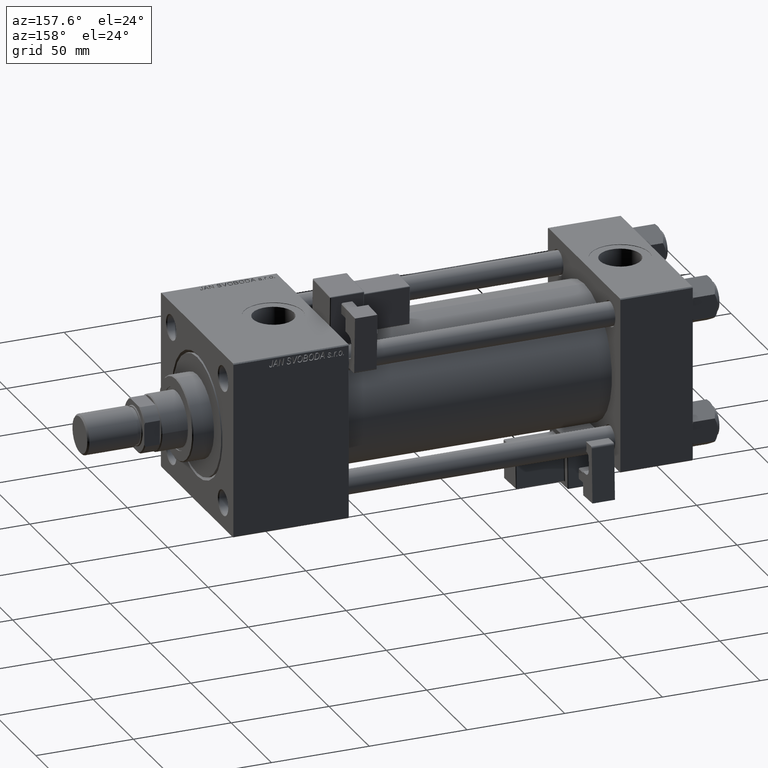
[diagram: clean part render]
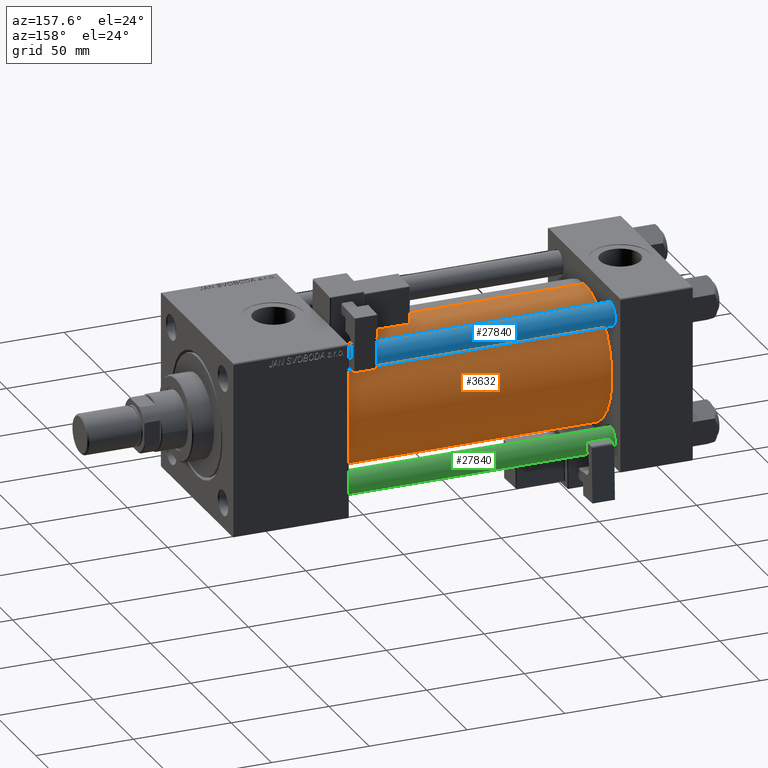
[diagram: same view with three faces highlighted in distinct colors, each labeled with its STEP entity id]
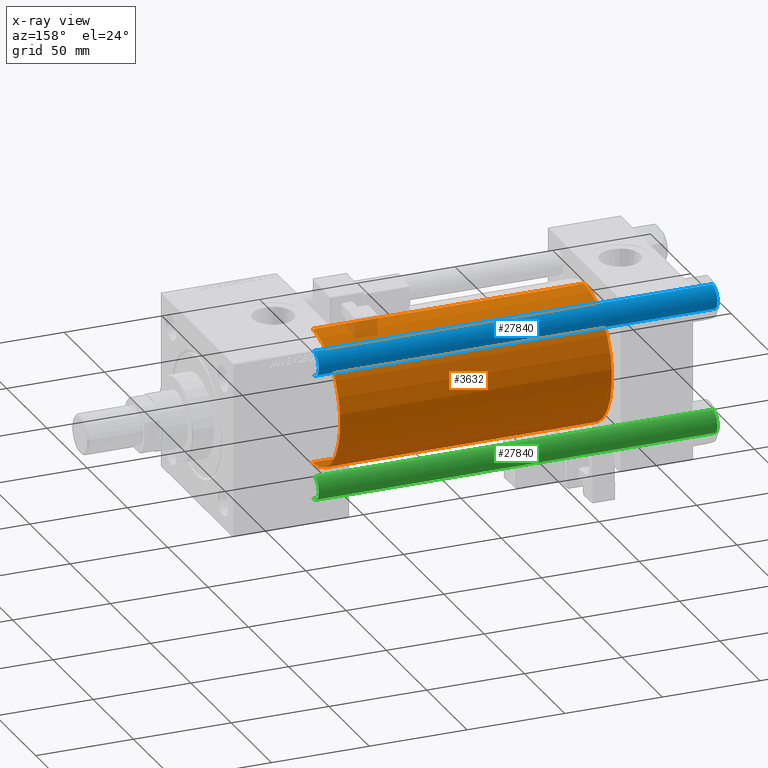
[diagram: x-ray of the same camera — body ghosted, the three highlighted faces saturated]
A machine part, auxiliary view with three faces highlighted in distinct colors.
The next image is the same camera in x-ray (body ghosted, the three faces saturated) — at least one of them is partly hidden behind the body in this view.
Their STEP definitions:

[orange] entity #3632 — the highlighted cylindrical surface (partial cylindrical patch) has radius 34.5 mm, axis along (-1, -0, -0).
#3632 = ADVANCED_FACE ( 'NONE', ( #26807 ), #44485, .T. ) ;
#6497 = DIRECTION ( 'NONE',  ( -1.000000000000000000, -0.000000000000000000, -0.000000000000000000 ) ) ;
#7940 = CARTESIAN_POINT ( 'NONE',  ( 176.0000000000000284, 1.622946243093158675E-15, -34.50000000000000000 ) ) ;
#8100 = DIRECTION ( 'NONE',  ( 1.000000000000000000, -0.000000000000000000, 0.000000000000000000 ) ) ;
#8872 = VERTEX_POINT ( 'NONE', #41058 ) ;
#10440 = DIRECTION ( 'NONE',  ( 1.000000000000000000, 0.000000000000000000, 0.000000000000000000 ) ) ;
#11981 = CARTESIAN_POINT ( 'NONE',  ( 176.0000000000000284, 1.622946243093158675E-15, -34.50000000000000000 ) ) ;
#12918 = VERTEX_POINT ( 'NONE', #15314 ) ;
#14861 = CIRCLE ( 'NONE', #15778, 34.50000000000000000 ) ;
#15219 = AXIS2_PLACEMENT_3D ( 'NONE', #16930, #8100, #16382 ) ;
#15314 = CARTESIAN_POINT ( 'NONE',  ( 37.00000000000000711, 1.622946243093158675E-15, -34.50000000000000000 ) ) ;
#15353 = ORIENTED_EDGE ( 'NONE', *, *, #20577, .T. ) ;
#15778 = AXIS2_PLACEMENT_3D ( 'NONE', #31165, #10440, #39722 ) ;
#16033 = ORIENTED_EDGE ( 'NONE', *, *, #29620, .T. ) ;
#16382 = DIRECTION ( 'NONE',  ( 0.000000000000000000, 0.000000000000000000, 1.000000000000000000 ) ) ;
#16873 = ORIENTED_EDGE ( 'NONE', *, *, #34624, .F. ) ;
#16930 = CARTESIAN_POINT ( 'NONE',  ( 37.00000000000000711, -2.602085213965210642E-15, 0.000000000000000000 ) ) ;
#18902 = CARTESIAN_POINT ( 'NONE',  ( 176.0000000000000284, -2.602085213965210642E-15, 34.50000000000000000 ) ) ;
#19732 = LINE ( 'NONE', #11981, #51629 ) ;
#20577 = EDGE_CURVE ( 'NONE', #12918, #34658, #30209, .T. ) ;
#22390 = CARTESIAN_POINT ( 'NONE',  ( 176.0000000000000284, -2.602085213965210642E-15, 0.000000000000000000 ) ) ;
#26807 = FACE_OUTER_BOUND ( 'NONE', #29388, .T. ) ;
#29388 = EDGE_LOOP ( 'NONE', ( #29718, #16033, #15353, #16873 ) ) ;
#29620 = EDGE_CURVE ( 'NONE', #43379, #12918, #19732, .T. ) ;
#29718 = ORIENTED_EDGE ( 'NONE', *, *, #36533, .F. ) ;
#29799 = VECTOR ( 'NONE', #6497, 1000.000000000000000 ) ;
#30209 = CIRCLE ( 'NONE', #15219, 34.50000000000000000 ) ;
#31165 = CARTESIAN_POINT ( 'NONE',  ( 176.0000000000000284, -2.602085213965210642E-15, 0.000000000000000000 ) ) ;
#34624 = EDGE_CURVE ( 'NONE', #8872, #34658, #48447, .T. ) ;
#34658 = VERTEX_POINT ( 'NONE', #40189 ) ;
#35942 = DIRECTION ( 'NONE',  ( 0.000000000000000000, 0.000000000000000000, 1.000000000000000000 ) ) ;
#36533 = EDGE_CURVE ( 'NONE', #43379, #8872, #14861, .T. ) ;
#37148 = DIRECTION ( 'NONE',  ( -1.000000000000000000, -0.000000000000000000, -0.000000000000000000 ) ) ;
#39722 = DIRECTION ( 'NONE',  ( 0.000000000000000000, 0.000000000000000000, -1.000000000000000000 ) ) ;
#40189 = CARTESIAN_POINT ( 'NONE',  ( 37.00000000000000711, -2.602085213965210642E-15, 34.50000000000000000 ) ) ;
#40352 = DIRECTION ( 'NONE',  ( -1.000000000000000000, -0.000000000000000000, -0.000000000000000000 ) ) ;
#41058 = CARTESIAN_POINT ( 'NONE',  ( 176.0000000000000284, -2.602085213965210642E-15, 34.50000000000000000 ) ) ;
#43379 = VERTEX_POINT ( 'NONE', #7940 ) ;
#44485 = CYLINDRICAL_SURFACE ( 'NONE', #52440, 34.50000000000000000 ) ;
#48447 = LINE ( 'NONE', #18902, #29799 ) ;
#51629 = VECTOR ( 'NONE', #37148, 1000.000000000000000 ) ;
#52440 = AXIS2_PLACEMENT_3D ( 'NONE', #22390, #40352, #35942 ) ;

[blue] entity #27840 — the highlighted cylindrical surface (edge-blend (fillet) strip) has radius 6 mm, axis along (-1, 0, 0).
#4569 = CARTESIAN_POINT ( 'NONE',  ( -6.000000000000000888, 0.000000000000000000, 0.5000000000001114664 ) ) ;
#5223 = CYLINDRICAL_SURFACE ( 'NONE', #7613, 6.000000000000000888 ) ;
#6392 = ORIENTED_EDGE ( 'NONE', *, *, #23679, .T. ) ;
#6829 = DIRECTION ( 'NONE',  ( -0.000000000000000000, -0.000000000000000000, 1.000000000000000000 ) ) ;
#7613 = AXIS2_PLACEMENT_3D ( 'NONE', #10173, #43589, #13503 ) ;
#8306 = CIRCLE ( 'NONE', #35659, 6.000000000000000888 ) ;
#10173 = CARTESIAN_POINT ( 'NONE',  ( 0.000000000000000000, 0.000000000000000000, 205.0000000000000000 ) ) ;
#11552 = DIRECTION ( 'NONE',  ( 0.000000000000000000, 0.000000000000000000, -1.000000000000000000 ) ) ;
#13503 = DIRECTION ( 'NONE',  ( -1.000000000000000000, 0.000000000000000000, 0.000000000000000000 ) ) ;
#13649 = EDGE_LOOP ( 'NONE', ( #6392, #48960, #37831, #41454 ) ) ;
#13761 = EDGE_CURVE ( 'NONE', #44231, #43588, #45745, .T. ) ;
#21665 = CARTESIAN_POINT ( 'NONE',  ( -6.000000000000000888, 0.000000000000000000, 204.5000000000000568 ) ) ;
#23679 = EDGE_CURVE ( 'NONE', #43662, #37494, #8306, .T. ) ;
#24053 = EDGE_CURVE ( 'NONE', #37494, #44231, #26622, .T. ) ;
#25433 = AXIS2_PLACEMENT_3D ( 'NONE', #44661, #6829, #32791 ) ;
#26622 = LINE ( 'NONE', #31592, #44474 ) ;
#27840 = ADVANCED_FACE ( 'NONE', ( #47453 ), #5223, .T. ) ;
#28933 = CARTESIAN_POINT ( 'NONE',  ( 0.000000000000000000, 0.000000000000000000, 204.5000000000000568 ) ) ;
#30906 = VECTOR ( 'NONE', #32753, 1000.000000000000000 ) ;
#31592 = CARTESIAN_POINT ( 'NONE',  ( 6.000000000000000888, 7.347880794884119736E-16, 205.0000000000000000 ) ) ;
#32753 = DIRECTION ( 'NONE',  ( -0.000000000000000000, -0.000000000000000000, -1.000000000000000000 ) ) ;
#32791 = DIRECTION ( 'NONE',  ( 1.000000000000000000, 0.000000000000000000, 0.000000000000000000 ) ) ;
#34696 = CARTESIAN_POINT ( 'NONE',  ( 6.000000000000000888, 7.347880794884119736E-16, 204.5000000000000568 ) ) ;
#35659 = AXIS2_PLACEMENT_3D ( 'NONE', #28933, #11552, #45773 ) ;
#37494 = VERTEX_POINT ( 'NONE', #34696 ) ;
#37831 = ORIENTED_EDGE ( 'NONE', *, *, #13761, .T. ) ;
#41205 = EDGE_CURVE ( 'NONE', #43662, #43588, #42104, .T. ) ;
#41454 = ORIENTED_EDGE ( 'NONE', *, *, #41205, .F. ) ;
#42104 = LINE ( 'NONE', #54245, #30906 ) ;
#43588 = VERTEX_POINT ( 'NONE', #4569 ) ;
#43589 = DIRECTION ( 'NONE',  ( -0.000000000000000000, -0.000000000000000000, -1.000000000000000000 ) ) ;
#43662 = VERTEX_POINT ( 'NONE', #21665 ) ;
#44231 = VERTEX_POINT ( 'NONE', #51894 ) ;
#44474 = VECTOR ( 'NONE', #48141, 1000.000000000000000 ) ;
#44661 = CARTESIAN_POINT ( 'NONE',  ( 0.000000000000000000, 0.000000000000000000, 0.5000000000001114664 ) ) ;
#45745 = CIRCLE ( 'NONE', #25433, 6.000000000000000888 ) ;
#45773 = DIRECTION ( 'NONE',  ( 1.000000000000000000, 0.000000000000000000, 0.000000000000000000 ) ) ;
#47453 = FACE_OUTER_BOUND ( 'NONE', #13649, .T. ) ;
#48141 = DIRECTION ( 'NONE',  ( -0.000000000000000000, -0.000000000000000000, -1.000000000000000000 ) ) ;
#48960 = ORIENTED_EDGE ( 'NONE', *, *, #24053, .T. ) ;
#51894 = CARTESIAN_POINT ( 'NONE',  ( 6.000000000000000888, 7.347880794884119736E-16, 0.5000000000001114664 ) ) ;
#54245 = CARTESIAN_POINT ( 'NONE',  ( -6.000000000000000888, 0.000000000000000000, 205.0000000000000000 ) ) ;

[green] entity #27840 — the highlighted cylindrical surface (edge-blend (fillet) strip) has radius 6 mm, axis along (1, -0, 0).
#4569 = CARTESIAN_POINT ( 'NONE',  ( -6.000000000000000888, 0.000000000000000000, 0.5000000000001114664 ) ) ;
#5223 = CYLINDRICAL_SURFACE ( 'NONE', #7613, 6.000000000000000888 ) ;
#6392 = ORIENTED_EDGE ( 'NONE', *, *, #23679, .T. ) ;
#6829 = DIRECTION ( 'NONE',  ( -0.000000000000000000, -0.000000000000000000, 1.000000000000000000 ) ) ;
#7613 = AXIS2_PLACEMENT_3D ( 'NONE', #10173, #43589, #13503 ) ;
#8306 = CIRCLE ( 'NONE', #35659, 6.000000000000000888 ) ;
#10173 = CARTESIAN_POINT ( 'NONE',  ( 0.000000000000000000, 0.000000000000000000, 205.0000000000000000 ) ) ;
#11552 = DIRECTION ( 'NONE',  ( 0.000000000000000000, 0.000000000000000000, -1.000000000000000000 ) ) ;
#13503 = DIRECTION ( 'NONE',  ( -1.000000000000000000, 0.000000000000000000, 0.000000000000000000 ) ) ;
#13649 = EDGE_LOOP ( 'NONE', ( #6392, #48960, #37831, #41454 ) ) ;
#13761 = EDGE_CURVE ( 'NONE', #44231, #43588, #45745, .T. ) ;
#21665 = CARTESIAN_POINT ( 'NONE',  ( -6.000000000000000888, 0.000000000000000000, 204.5000000000000568 ) ) ;
#23679 = EDGE_CURVE ( 'NONE', #43662, #37494, #8306, .T. ) ;
#24053 = EDGE_CURVE ( 'NONE', #37494, #44231, #26622, .T. ) ;
#25433 = AXIS2_PLACEMENT_3D ( 'NONE', #44661, #6829, #32791 ) ;
#26622 = LINE ( 'NONE', #31592, #44474 ) ;
#27840 = ADVANCED_FACE ( 'NONE', ( #47453 ), #5223, .T. ) ;
#28933 = CARTESIAN_POINT ( 'NONE',  ( 0.000000000000000000, 0.000000000000000000, 204.5000000000000568 ) ) ;
#30906 = VECTOR ( 'NONE', #32753, 1000.000000000000000 ) ;
#31592 = CARTESIAN_POINT ( 'NONE',  ( 6.000000000000000888, 7.347880794884119736E-16, 205.0000000000000000 ) ) ;
#32753 = DIRECTION ( 'NONE',  ( -0.000000000000000000, -0.000000000000000000, -1.000000000000000000 ) ) ;
#32791 = DIRECTION ( 'NONE',  ( 1.000000000000000000, 0.000000000000000000, 0.000000000000000000 ) ) ;
#34696 = CARTESIAN_POINT ( 'NONE',  ( 6.000000000000000888, 7.347880794884119736E-16, 204.5000000000000568 ) ) ;
#35659 = AXIS2_PLACEMENT_3D ( 'NONE', #28933, #11552, #45773 ) ;
#37494 = VERTEX_POINT ( 'NONE', #34696 ) ;
#37831 = ORIENTED_EDGE ( 'NONE', *, *, #13761, .T. ) ;
#41205 = EDGE_CURVE ( 'NONE', #43662, #43588, #42104, .T. ) ;
#41454 = ORIENTED_EDGE ( 'NONE', *, *, #41205, .F. ) ;
#42104 = LINE ( 'NONE', #54245, #30906 ) ;
#43588 = VERTEX_POINT ( 'NONE', #4569 ) ;
#43589 = DIRECTION ( 'NONE',  ( -0.000000000000000000, -0.000000000000000000, -1.000000000000000000 ) ) ;
#43662 = VERTEX_POINT ( 'NONE', #21665 ) ;
#44231 = VERTEX_POINT ( 'NONE', #51894 ) ;
#44474 = VECTOR ( 'NONE', #48141, 1000.000000000000000 ) ;
#44661 = CARTESIAN_POINT ( 'NONE',  ( 0.000000000000000000, 0.000000000000000000, 0.5000000000001114664 ) ) ;
#45745 = CIRCLE ( 'NONE', #25433, 6.000000000000000888 ) ;
#45773 = DIRECTION ( 'NONE',  ( 1.000000000000000000, 0.000000000000000000, 0.000000000000000000 ) ) ;
#47453 = FACE_OUTER_BOUND ( 'NONE', #13649, .T. ) ;
#48141 = DIRECTION ( 'NONE',  ( -0.000000000000000000, -0.000000000000000000, -1.000000000000000000 ) ) ;
#48960 = ORIENTED_EDGE ( 'NONE', *, *, #24053, .T. ) ;
#51894 = CARTESIAN_POINT ( 'NONE',  ( 6.000000000000000888, 7.347880794884119736E-16, 0.5000000000001114664 ) ) ;
#54245 = CARTESIAN_POINT ( 'NONE',  ( -6.000000000000000888, 0.000000000000000000, 205.0000000000000000 ) ) ;